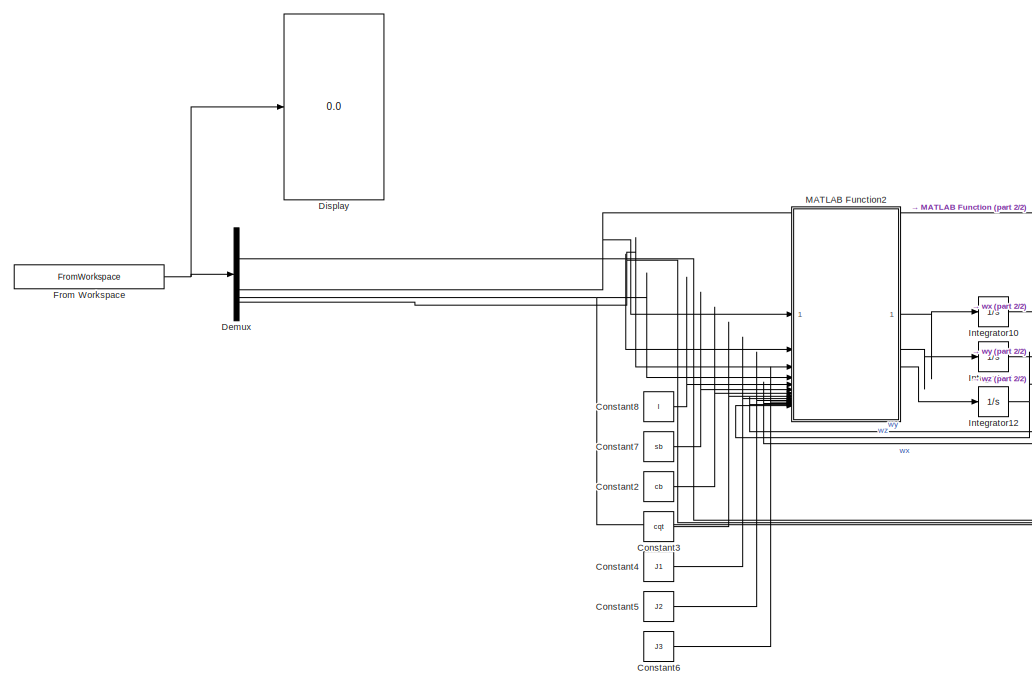
[diagram: root canvas - part 1/2, left side, full height]
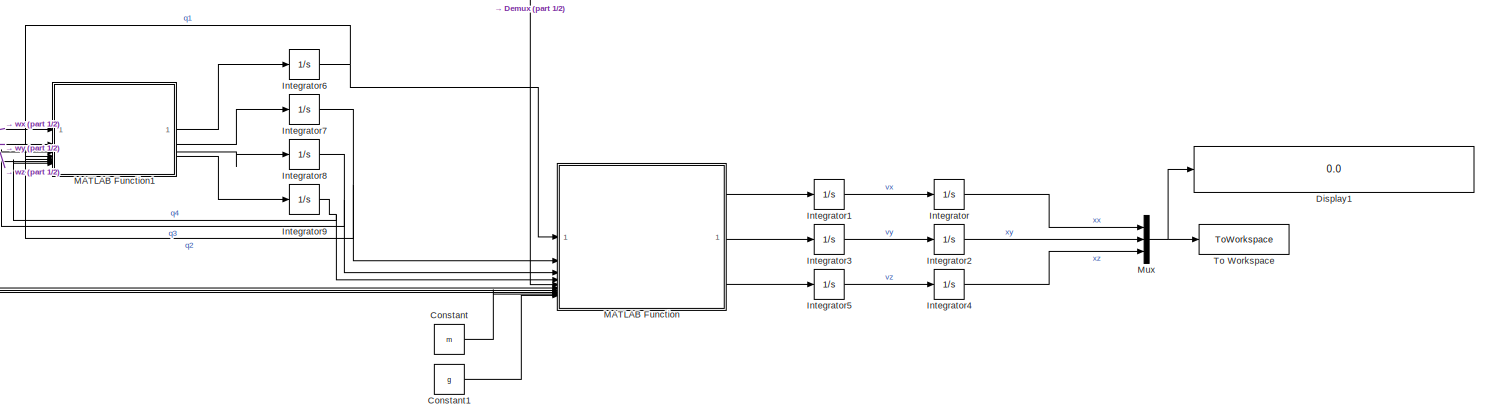
[diagram: root canvas - part 2/2, middle right region]
MODEL slx_b3db5f7796fc
KIND model
CONFIG AbsTol = auto
CONFIG EnableMultiTasking = off
CONFIG FixedStep = auto
CONFIG MaxStep = auto
CONFIG MinStep = auto
CONFIG RelTol = 1e-3
CONFIG SampleTimeConstraint = Unconstrained
CONFIG SolverName = VariableStepAuto
CONFIG StartTime = 0.0
CONFIG StopTime = 15.05
BLOCK [Constant] Constant
  Value = m
BLOCK [Constant] Constant1
  Value = g
BLOCK [Constant] Constant2
  Value = cb
BLOCK [Constant] Constant3
  Value = cqt
BLOCK [Constant] Constant4
  Value = J1
BLOCK [Constant] Constant5
  Value = J2
BLOCK [Constant] Constant6
  Value = J3
BLOCK [Constant] Constant7
  Value = sb
BLOCK [Constant] Constant8
  Value = l
BLOCK [Demux] Demux
BLOCK [Display] Display
  Decimation = 4
BLOCK [Display] Display1
  Decimation = 1
BLOCK [FromWorkspace] From Workspace
  OutDataTypeStr = double
  SampleTime = 0.005
  VariableName = simulink_controls.CONTROLS
BLOCK [Integrator] Integrator
BLOCK [Integrator] Integrator1
BLOCK [Integrator] Integrator10
BLOCK [Integrator] Integrator11
BLOCK [Integrator] Integrator12
BLOCK [Integrator] Integrator2
BLOCK [Integrator] Integrator3
BLOCK [Integrator] Integrator4
BLOCK [Integrator] Integrator5
BLOCK [Integrator] Integrator6
  InitialCondition = 1
BLOCK [Integrator] Integrator7
BLOCK [Integrator] Integrator8
BLOCK [Integrator] Integrator9
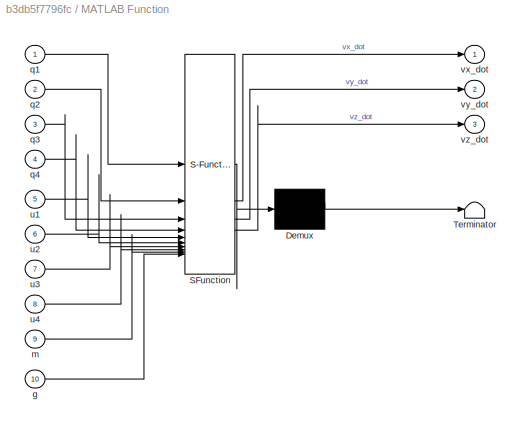
BLOCK [SubSystem] MATLAB Function
  ErrorFcn = Stateflow.Translate.translate
  LibrarySourceBlock = simulink/User-Defined\nFunctions/MATLAB Function
  PermitHierarchicalResolution = ExplicitOnly
  SFBlockType = MATLAB Function
  TreatAsAtomicUnit = on
BLOCK [Demux] MATLAB Function/ Demux 
  Outputs = 1
BLOCK [S-Function] MATLAB Function/ SFunction 
  EnableBusSupport = on
  FunctionName = sf_sfun
  PortCounts = [10 4]
  SFcnIsStateOwnerBlock = off
  SFunctionDeploymentMode = off
  Tag = Stateflow S-Function 2
BLOCK [Terminator] MATLAB Function/ Terminator 
BLOCK [Inport] MATLAB Function/g
  Port = 10
BLOCK [Inport] MATLAB Function/m
  Port = 9
BLOCK [Inport] MATLAB Function/q1
BLOCK [Inport] MATLAB Function/q2
  Port = 2
BLOCK [Inport] MATLAB Function/q3
  Port = 3
BLOCK [Inport] MATLAB Function/q4
  Port = 4
BLOCK [Inport] MATLAB Function/u1
  Port = 5
BLOCK [Inport] MATLAB Function/u2
  Port = 6
BLOCK [Inport] MATLAB Function/u3
  Port = 7
BLOCK [Inport] MATLAB Function/u4
  Port = 8
BLOCK [Outport] MATLAB Function/vx_dot
BLOCK [Outport] MATLAB Function/vy_dot
  Port = 2
BLOCK [Outport] MATLAB Function/vz_dot
  Port = 3
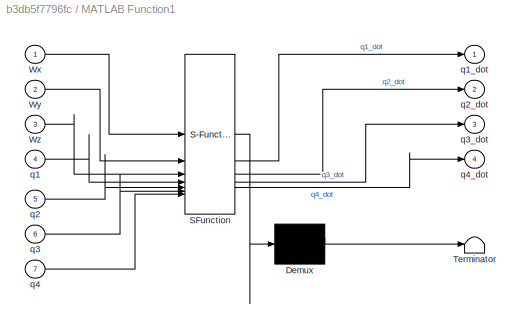
BLOCK [SubSystem] MATLAB Function1
  ErrorFcn = Stateflow.Translate.translate
  LibrarySourceBlock = simulink/User-Defined\nFunctions/MATLAB Function
  PermitHierarchicalResolution = ExplicitOnly
  SFBlockType = MATLAB Function
  TreatAsAtomicUnit = on
BLOCK [Demux] MATLAB Function1/ Demux 
  Outputs = 1
BLOCK [S-Function] MATLAB Function1/ SFunction 
  EnableBusSupport = on
  FunctionName = sf_sfun
  PortCounts = [7 5]
  SFcnIsStateOwnerBlock = off
  SFunctionDeploymentMode = off
  Tag = Stateflow S-Function 1
BLOCK [Terminator] MATLAB Function1/ Terminator 
BLOCK [Inport] MATLAB Function1/Wx
BLOCK [Inport] MATLAB Function1/Wy
  Port = 2
BLOCK [Inport] MATLAB Function1/Wz
  Port = 3
BLOCK [Inport] MATLAB Function1/q1
  Port = 4
BLOCK [Outport] MATLAB Function1/q1_dot
BLOCK [Inport] MATLAB Function1/q2
  Port = 5
BLOCK [Outport] MATLAB Function1/q2_dot
  Port = 2
BLOCK [Inport] MATLAB Function1/q3
  Port = 6
BLOCK [Outport] MATLAB Function1/q3_dot
  Port = 3
BLOCK [Inport] MATLAB Function1/q4
  Port = 7
BLOCK [Outport] MATLAB Function1/q4_dot
  Port = 4
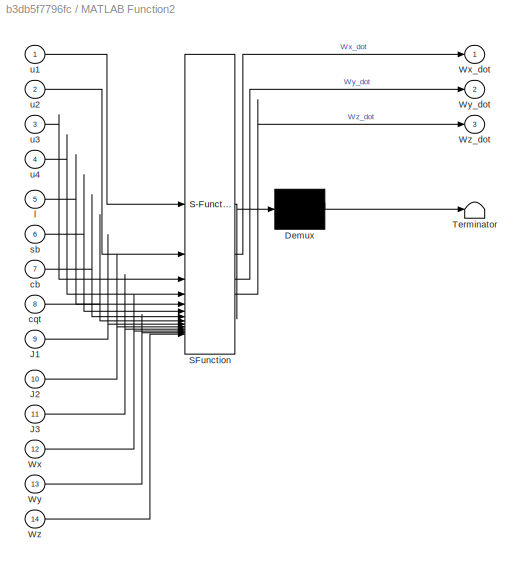
BLOCK [SubSystem] MATLAB Function2
  ErrorFcn = Stateflow.Translate.translate
  LibrarySourceBlock = simulink/User-Defined\nFunctions/MATLAB Function
  PermitHierarchicalResolution = ExplicitOnly
  SFBlockType = MATLAB Function
  TreatAsAtomicUnit = on
BLOCK [Demux] MATLAB Function2/ Demux 
  Outputs = 1
BLOCK [S-Function] MATLAB Function2/ SFunction 
  EnableBusSupport = on
  FunctionName = sf_sfun
  PortCounts = [14 4]
  SFcnIsStateOwnerBlock = off
  SFunctionDeploymentMode = off
  Tag = Stateflow S-Function 3
BLOCK [Terminator] MATLAB Function2/ Terminator 
BLOCK [Inport] MATLAB Function2/J1
  Port = 9
BLOCK [Inport] MATLAB Function2/J2
  Port = 10
BLOCK [Inport] MATLAB Function2/J3
  Port = 11
BLOCK [Inport] MATLAB Function2/Wx
  Port = 12
BLOCK [Outport] MATLAB Function2/Wx_dot
BLOCK [Inport] MATLAB Function2/Wy
  Port = 13
BLOCK [Outport] MATLAB Function2/Wy_dot
  Port = 2
BLOCK [Inport] MATLAB Function2/Wz
  Port = 14
BLOCK [Outport] MATLAB Function2/Wz_dot
  Port = 3
BLOCK [Inport] MATLAB Function2/cb
  Port = 7
BLOCK [Inport] MATLAB Function2/cqt
  Port = 8
BLOCK [Inport] MATLAB Function2/l
  Port = 5
BLOCK [Inport] MATLAB Function2/sb
  Port = 6
BLOCK [Inport] MATLAB Function2/u1
BLOCK [Inport] MATLAB Function2/u2
  Port = 2
BLOCK [Inport] MATLAB Function2/u3
  Port = 3
BLOCK [Inport] MATLAB Function2/u4
  Port = 4
BLOCK [Mux] Mux
  DisplayOption = bar
  Inputs = 3
BLOCK [ToWorkspace] To Workspace
  FixptAsFi = on
  MaxDataPoints = inf
  SampleTime = -1
  SaveFormat = Timeseries
  VariableName = simout
LINE Constant1:1 -> MATLAB Function:10
LINE Constant2:1 -> MATLAB Function2:7
LINE Constant3:1 -> MATLAB Function2:8
LINE Constant4:1 -> MATLAB Function2:9
LINE Constant5:1 -> MATLAB Function2:10
LINE Constant6:1 -> MATLAB Function2:11
LINE Constant7:1 -> MATLAB Function2:6
LINE Constant8:1 -> MATLAB Function2:5
LINE Constant:1 -> MATLAB Function:9
NET Demux:1 -> MATLAB Function2:2, MATLAB Function:6
NET Demux:2 -> MATLAB Function2:1, MATLAB Function:5
NET Demux:3 -> MATLAB Function2:4, MATLAB Function:8
NET Demux:4 -> MATLAB Function2:3, MATLAB Function:7
NET From Workspace:1 -> Demux:1, Display:1
NET Integrator10:1 -> MATLAB Function1:1, MATLAB Function2:12
NET Integrator11:1 -> MATLAB Function1:2, MATLAB Function2:13
NET Integrator12:1 -> MATLAB Function1:3, MATLAB Function2:14
LINE Integrator1:1 -> Integrator:1
LINE Integrator2:1 -> Mux:2
LINE Integrator3:1 -> Integrator2:1
LINE Integrator4:1 -> Mux:3
LINE Integrator5:1 -> Integrator4:1
NET Integrator6:1 -> MATLAB Function1:4, MATLAB Function:1
NET Integrator7:1 -> MATLAB Function1:5, MATLAB Function:2
NET Integrator8:1 -> MATLAB Function1:6, MATLAB Function:3
NET Integrator9:1 -> MATLAB Function1:7, MATLAB Function:4
LINE Integrator:1 -> Mux:1
LINE MATLAB Function1:1 -> Integrator6:1
LINE MATLAB Function1:2 -> Integrator7:1
LINE MATLAB Function1:3 -> Integrator8:1
LINE MATLAB Function1:4 -> Integrator9:1
LINE MATLAB Function2:1 -> Integrator10:1
LINE MATLAB Function2:2 -> Integrator11:1
LINE MATLAB Function2:3 -> Integrator12:1
LINE MATLAB Function:1 -> Integrator1:1
LINE MATLAB Function:2 -> Integrator3:1
LINE MATLAB Function:3 -> Integrator5:1
NET Mux:1 -> Display1:1, To Workspace:1
note: NET lines group one-source signal fan-out (src -> all destinations, sorted); 1:1 wires keep LINE
CHART MATLAB Function1 states=1 transitions=1
  STATE_LABEL 'eML_blk_kernel()'
  STATE_LABEL 'SCRIPT:\nfunction [q1_dot,q2_dot,q3_dot,q4_dot] = fcn(Wx,Wy,Wz,q1,q2,q3,q4)\n\nq1_dot = -0.5*q2*Wx - 0.5*q3*Wy - 0.5*q4*Wz;\nq2_dot = 0.5*q1*Wx - 0.5*q4*Wy + 0.5*q3*Wz;\nq3_dot = 0.5*q4*Wx + 0.5*q1*Wy - 0.5*q2*Wz;\nq4_dot = 0.5*q2*Wy - 0.5*q3*Wx + 0.5*q1*Wz;\n\nend'
CHART MATLAB Function states=1 transitions=1
  STATE_LABEL 'eML_blk_kernel()'
  STATE_LABEL 'SCRIPT:\nfunction [vx_dot,vy_dot,vz_dot]= fcn(q1,q2,q3,q4,u1,u2,u3,u4,m,g)\n\n\n% Acceleration \nvx_dot = -(((2*q1*q3 + 2*q2*q4)*(u1 + u2 + u3 + u4))/m);\nvy_dot = (((2*q1*q2 - 2*q3*q4)*(u1 + u2 + u3 + u4))/m);\nvz_dot = g - (((2*q1*q1 + 2*q4*q4 - 1)*(u1 + u2 + u3 + u4))/m);\n\n\nend\n'
CHART MATLAB Function2 states=1 transitions=1
  STATE_LABEL 'eML_blk_kernel()'
  STATE_LABEL 'SCRIPT:\nfunction [Wx_dot,Wy_dot,Wz_dot]= fcn(u1,u2,u3,u4,l,sb,cb,cqt,J1,J2,J3,Wx,Wy,Wz)\n\nWx_dot = -(l*sb*u1 - l*sb*u2 - l*sb*u3 + l*sb*u4 - J2*Wy*Wz + J3*Wy*Wz)/J1;\nWy_dot = (l*cb*u1 - l*cb*u2 + l*cb*u3 - l*cb*u4 - J1*Wx*Wz + J3*Wx*Wz)/J2;\nWz_dot = (cqt*u1 + cqt*u2 - cqt*u3 - cqt*u4 + J1*Wx*Wy - J2*Wx*Wy)/J3;\n\nend'
CHART  states=0 transitions=0
CHART  states=0 transitions=0
CHART  states=0 transitions=0
